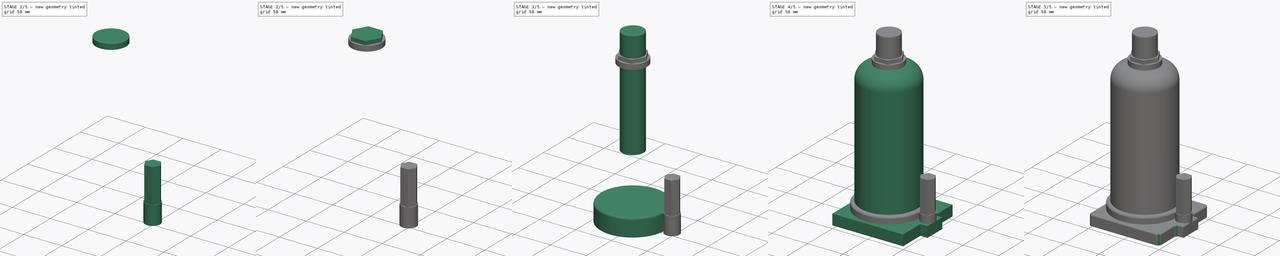
[diagram: build sequence overview — one tinted view per stage of 5, left to right]
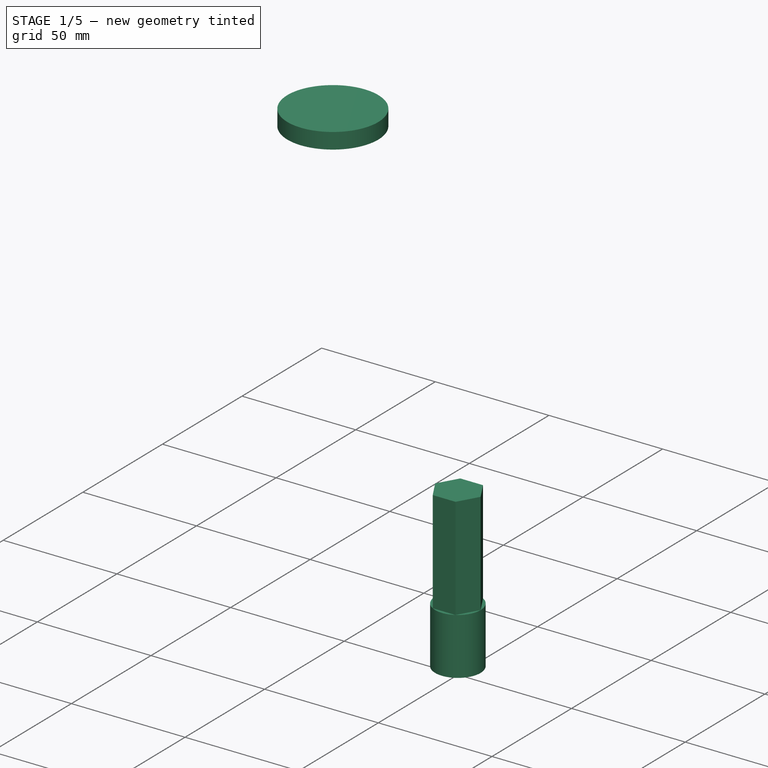
[diagram: stage 1 of 5 — iso view after this stage's code; geometry added in this stage tinted green]
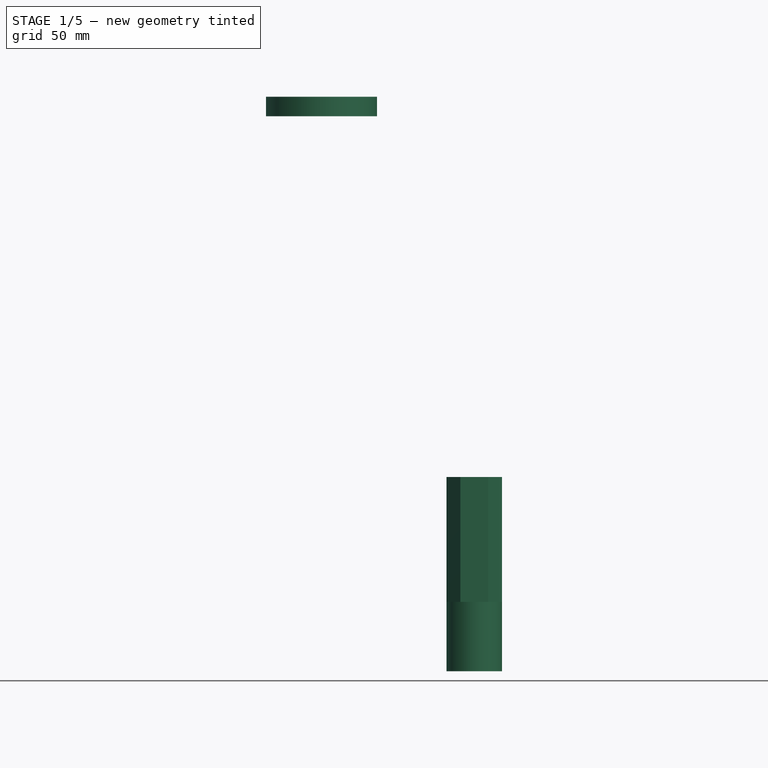
[diagram: stage 1 of 5 — front view after this stage's code; geometry added in this stage tinted green]
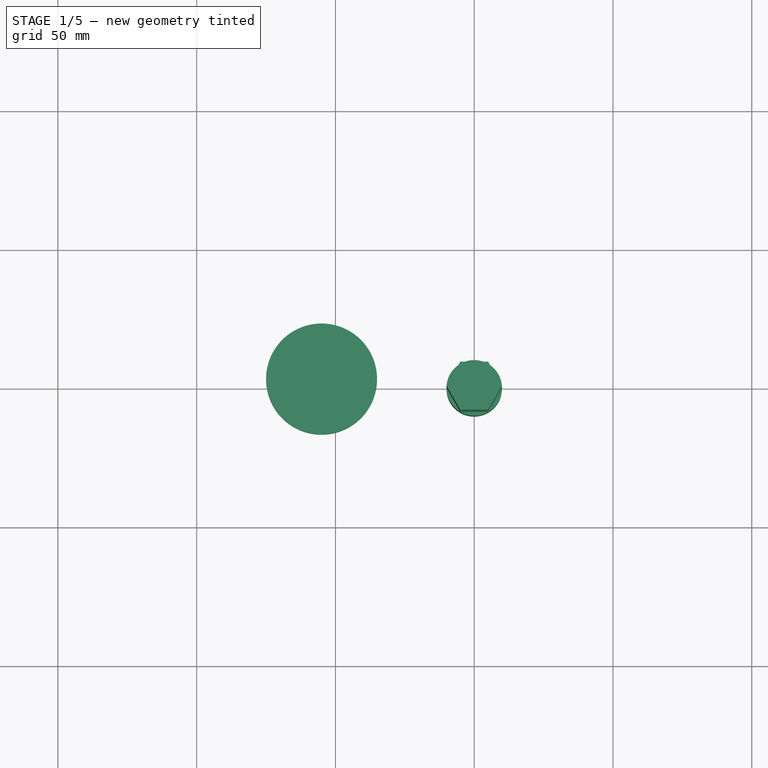
[diagram: stage 1 of 5 — top view after this stage's code; geometry added in this stage tinted green]
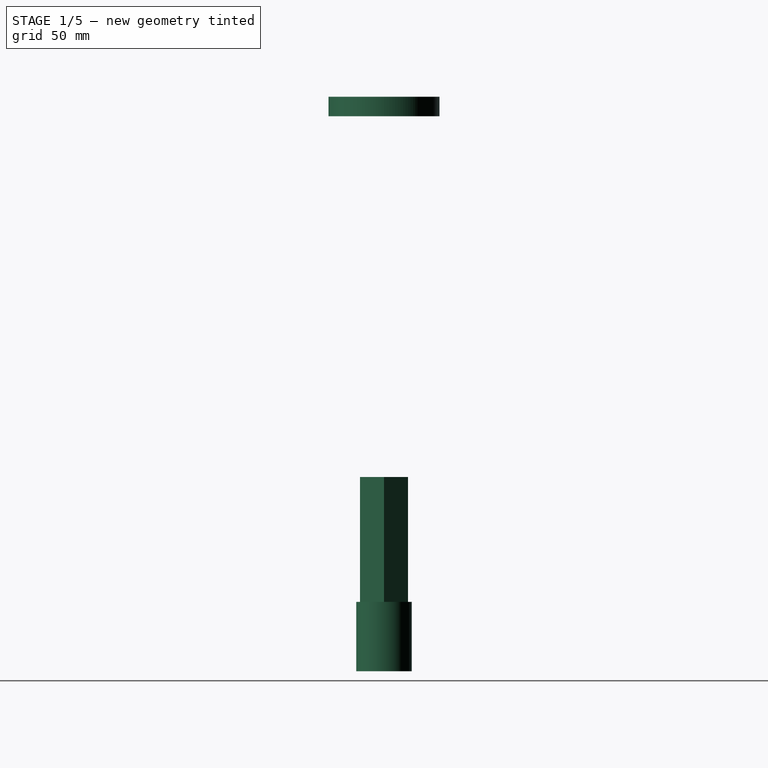
[diagram: stage 1 of 5 — right view after this stage's code; geometry added in this stage tinted green]
FCSTD DOCUMENT  (FreeCAD 0.18.4R)
Label: GatoFeo
License: All rights reserved
LicenseURL: http://en.wikipedia.org/wiki/All_rights_reserved
objects: Part::MultiFuse×6, Part::Fillet×4, Part::Cylinder×4, Sketcher::SketchObject×3, Part::Extrusion×2, Part::Prism×2
note: 21 computed .brp shape members not serialized (recipe doc carries the construction recipe); baked Part::Feature solids carry a one-line shape summary decoded from their .brp

FEATURE [Sketcher::SketchObject] Sketch001
  sketch-geometry (1):
    g0: Circle CenterX=50 CenterY=0 CenterZ=0 NormalX=0 NormalY=0 NormalZ=1 AngleXU=0 Radius=10
  constraints (3):
    c: PointOnObject(g0,g-1)
    c: Radius(g0) = 10
    c: DistanceX(g-1,g0) = 50
FEATURE [Part::Extrusion] Extrude001
  Base = -> Sketch001
  Dir = (0,0,1)
  DirMode = 2
  FaceMakerClass = Part::FaceMakerBullseye
  LengthFwd = 25
  LengthRev = 0
  Solid = true
  Symmetric = false
FEATURE [Part::Prism] Prism  label="Prisma"
  AttacherType = Attacher::AttachEngine3D
  Circumradius = 10
  Height = 70
  Placement = pos=(50,0,0) rot=(0,0,1;0rad)
  Polygon = 6
FEATURE [Part::Cylinder] Cylinder002  label="Cilindro002"
  Angle = 360
  AttacherType = Attacher::AttachEngine3D
  Height = 7
  Placement = pos=(-5,0,200) rot=(0,0,1;0rad)
  Radius = 20
FEATURE [Part::MultiFuse] Fusion001
  Shapes = -> [Extrude001,Prism]
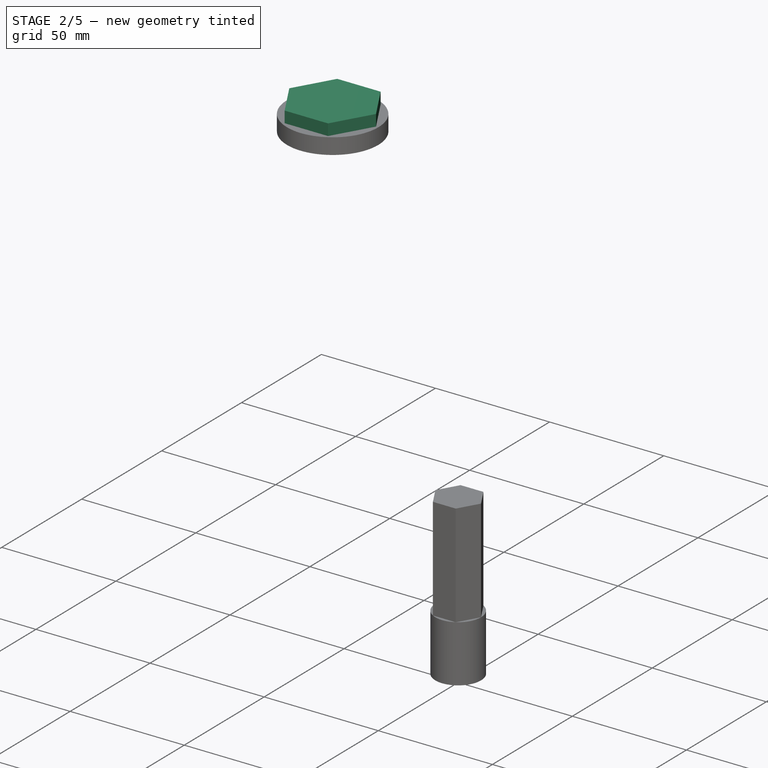
[diagram: stage 2 of 5 — iso view after this stage's code; geometry added in this stage tinted green]
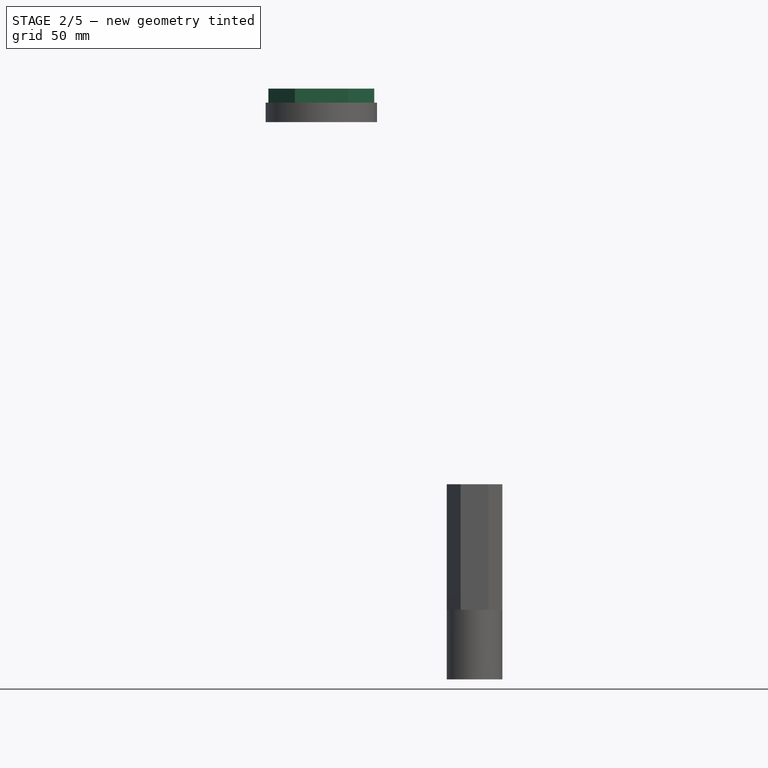
[diagram: stage 2 of 5 — front view after this stage's code; geometry added in this stage tinted green]
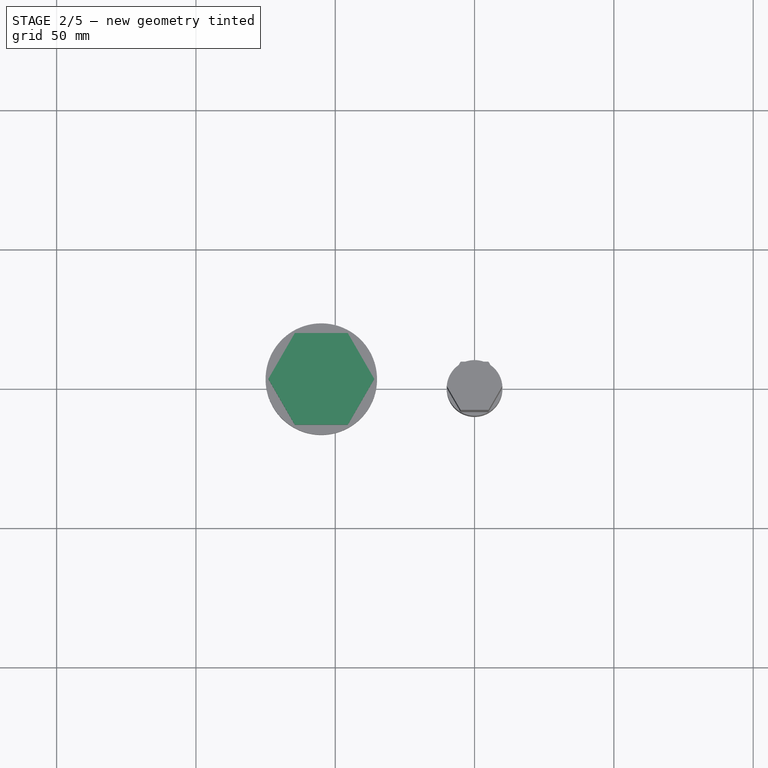
[diagram: stage 2 of 5 — top view after this stage's code; geometry added in this stage tinted green]
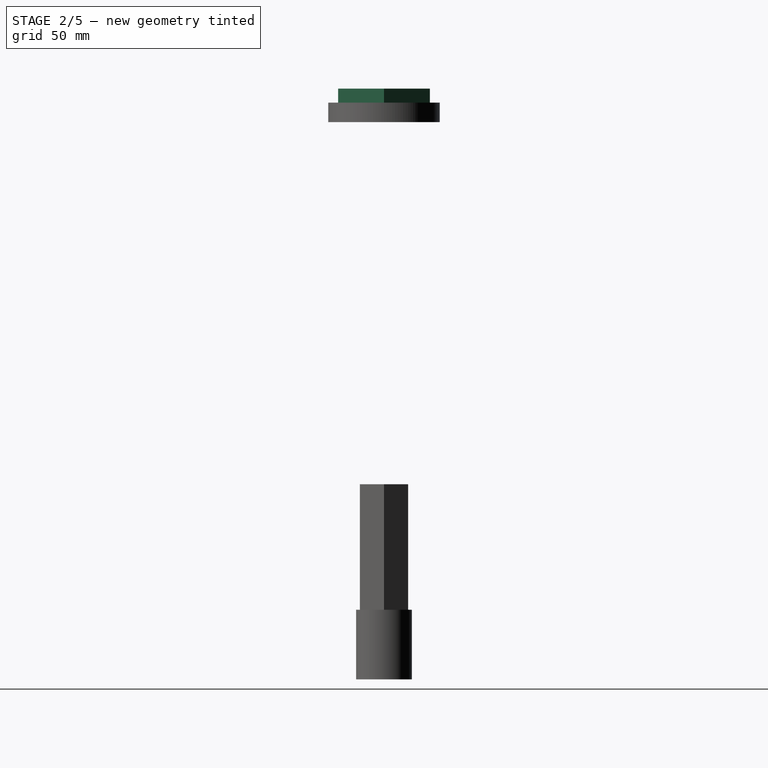
[diagram: stage 2 of 5 — right view after this stage's code; geometry added in this stage tinted green]
FEATURE [Part::Prism] Prism001  label="Prisma001"
  AttacherType = Attacher::AttachEngine3D
  Circumradius = 19
  Height = 12
  Placement = pos=(-5,0,200) rot=(0,0,1;0rad)
  Polygon = 6
FEATURE [Part::MultiFuse] Fusion
  Shapes = -> [Prism001,Cylinder002]
FEATURE [Part::MultiFuse] Fusion004
  Shapes = -> [Fusion,Fusion001]
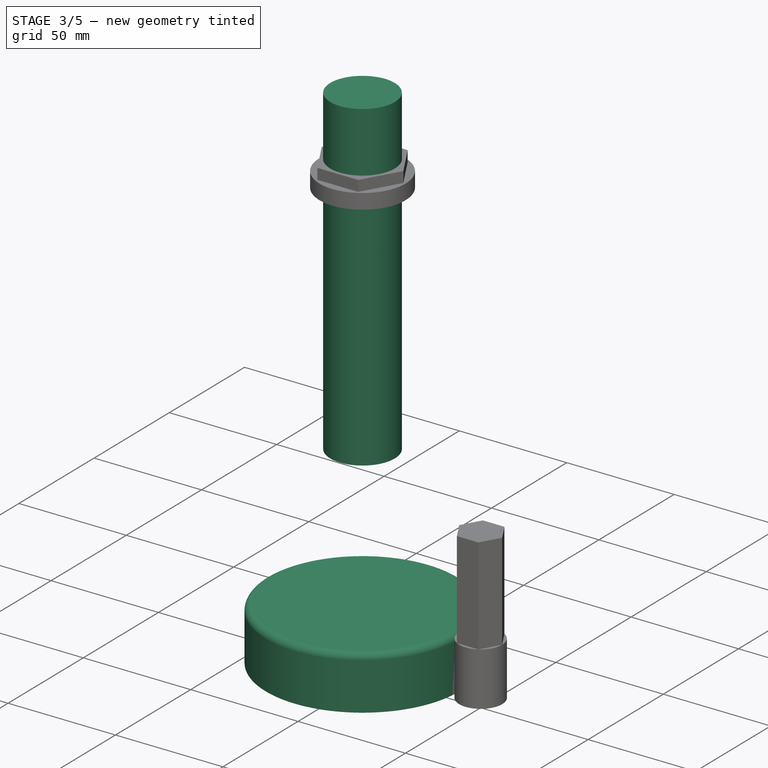
[diagram: stage 3 of 5 — iso view after this stage's code; geometry added in this stage tinted green]
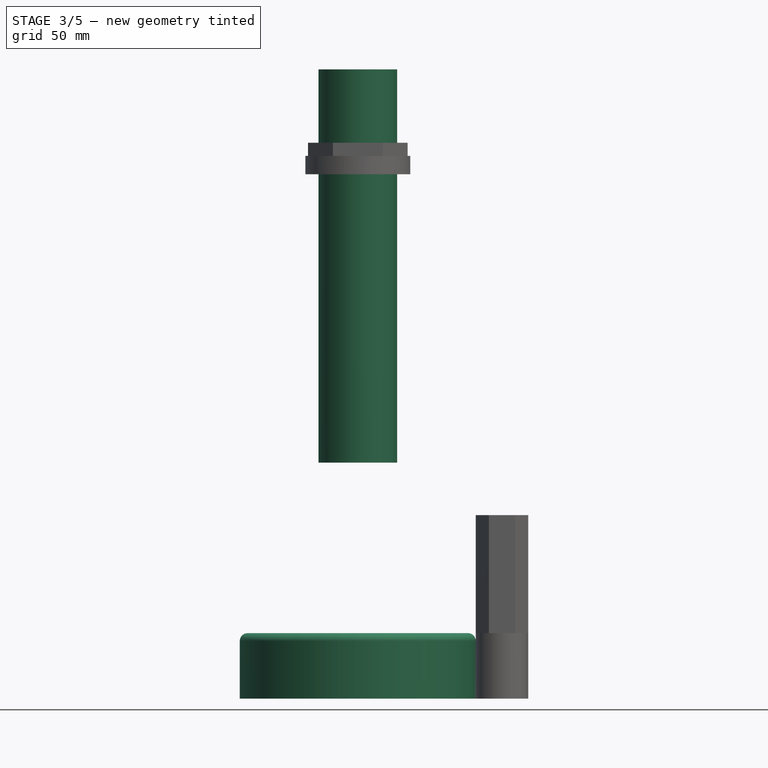
[diagram: stage 3 of 5 — front view after this stage's code; geometry added in this stage tinted green]
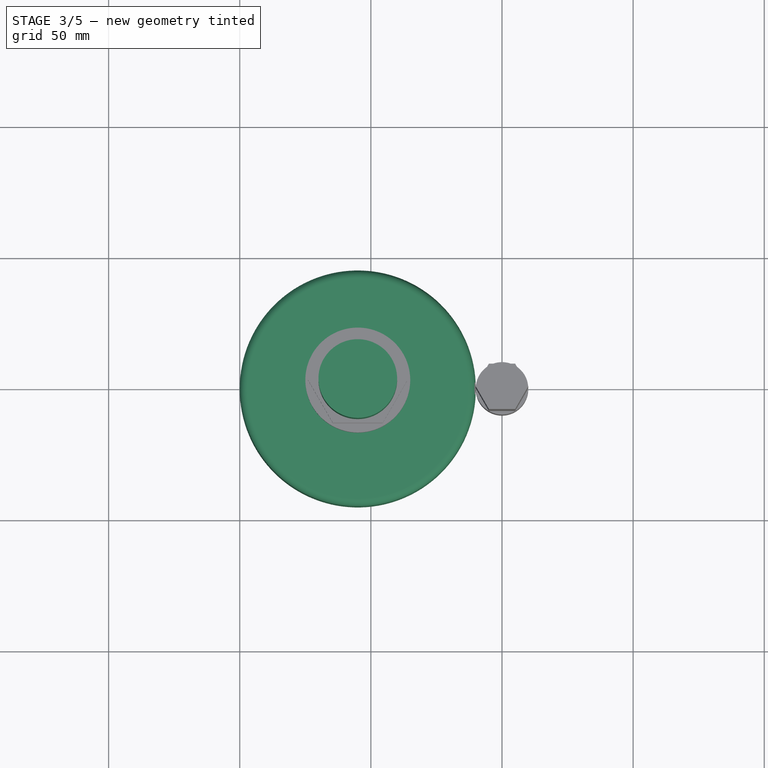
[diagram: stage 3 of 5 — top view after this stage's code; geometry added in this stage tinted green]
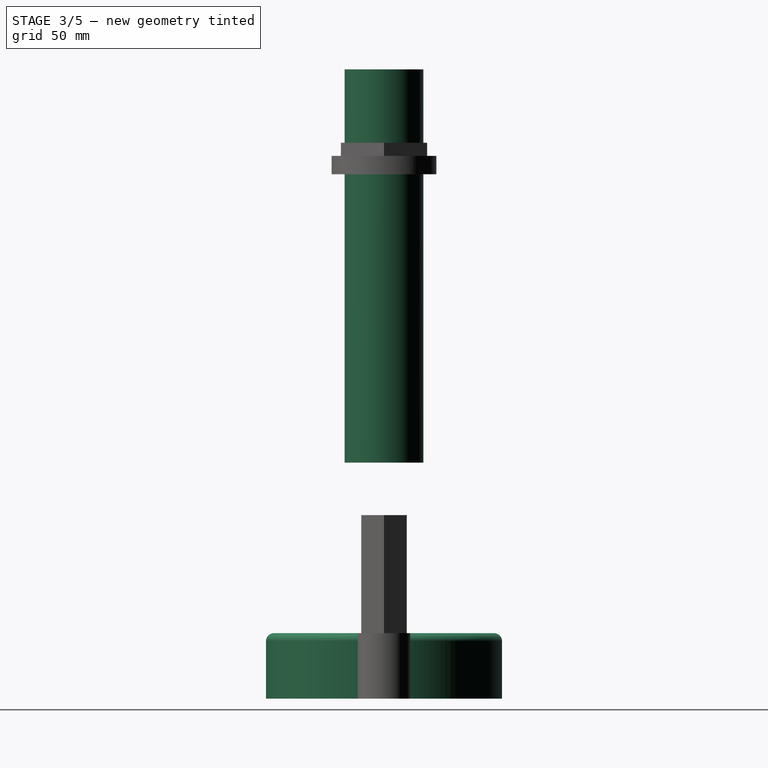
[diagram: stage 3 of 5 — right view after this stage's code; geometry added in this stage tinted green]
FEATURE [Part::Cylinder] Cylinder001  label="Cilindro001"
  Angle = 360
  AttacherType = Attacher::AttachEngine3D
  Height = 25
  Placement = pos=(-5,0,0) rot=(0,0,1;0rad)
  Radius = 45
FEATURE [Part::Fillet] Fillet003
  Base = -> Cylinder001
  Edges = 1 edges r=3: [Edge1]
FEATURE [Sketcher::SketchObject] Sketch002
  Placement = pos=(0,0,0) rot=(-1,0,0;4.71239rad)
FEATURE [Part::Cylinder] Cylinder003  label="Cilindro003"
  Angle = 360
  AttacherType = Attacher::AttachEngine3D
  Height = 150
  Placement = pos=(-5,0,90) rot=(0,0,1;0rad)
  Radius = 15
FEATURE [Part::MultiFuse] Fusion003
  Shapes = -> [Cylinder003,Fillet003]
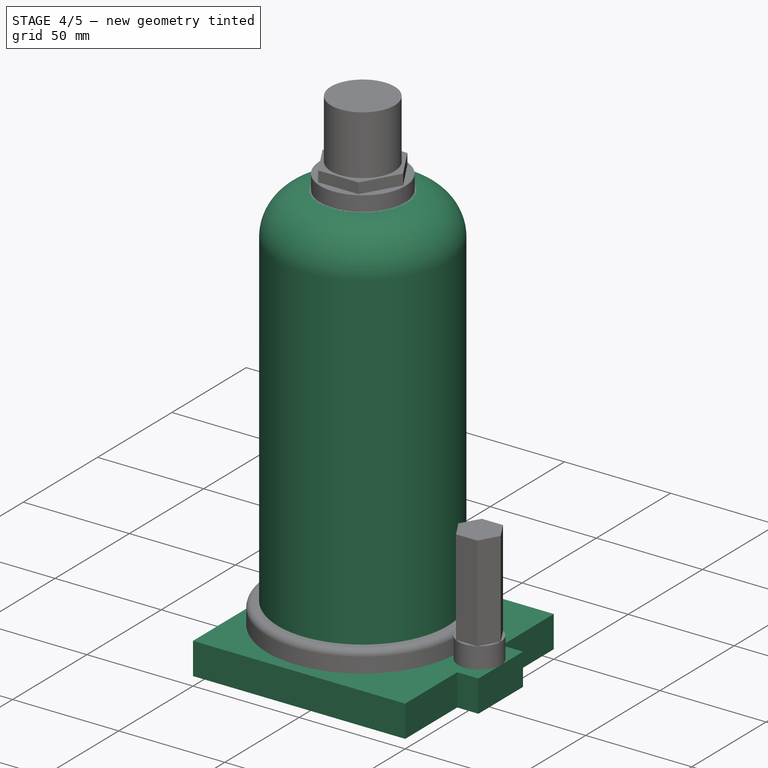
[diagram: stage 4 of 5 — iso view after this stage's code; geometry added in this stage tinted green]
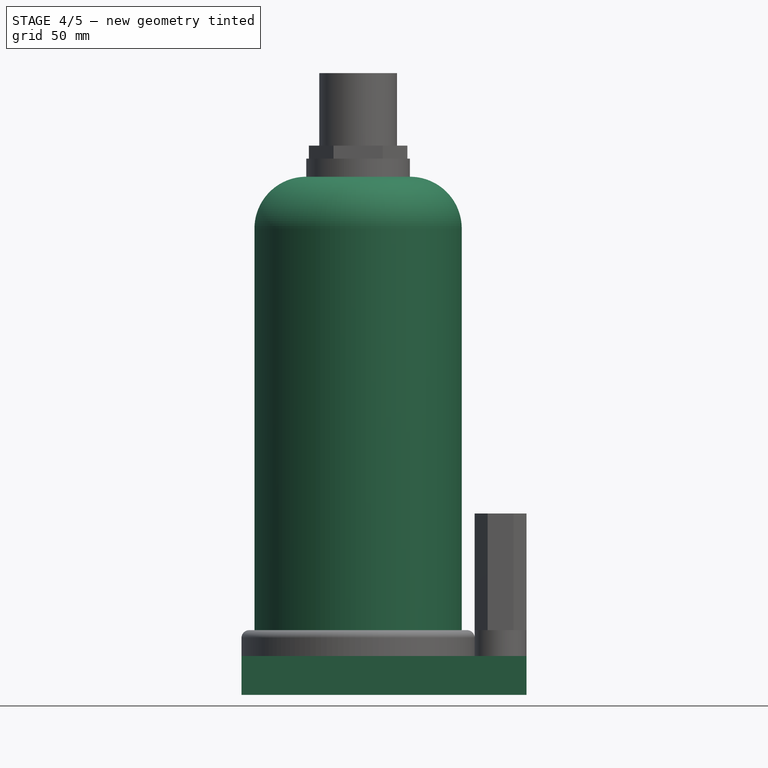
[diagram: stage 4 of 5 — front view after this stage's code; geometry added in this stage tinted green]
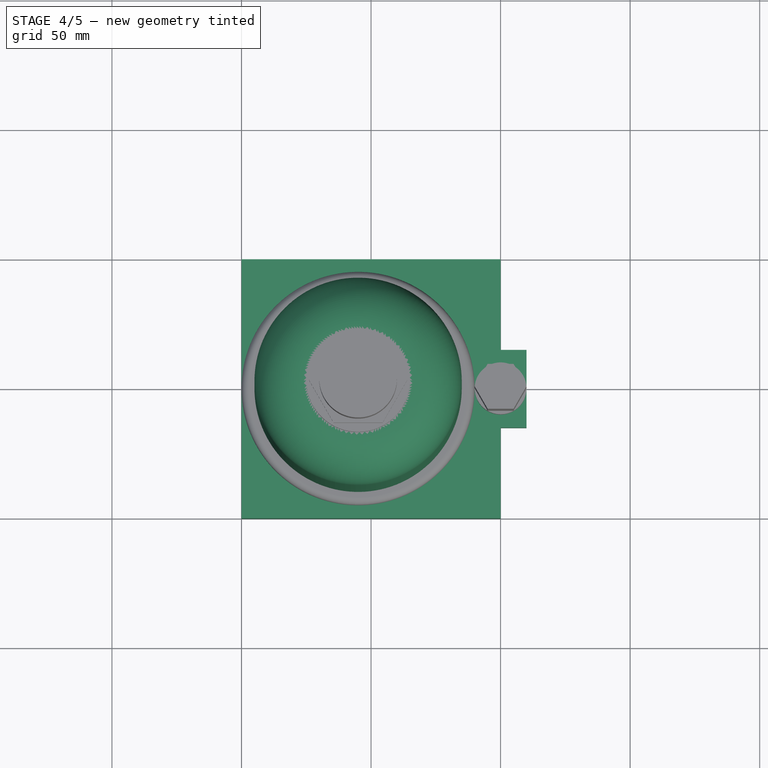
[diagram: stage 4 of 5 — top view after this stage's code; geometry added in this stage tinted green]
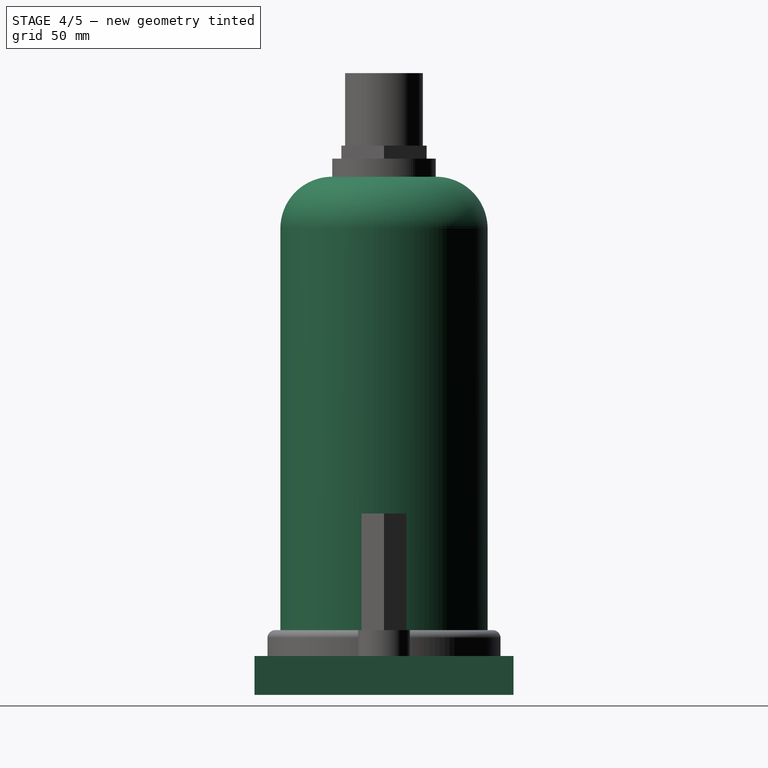
[diagram: stage 4 of 5 — right view after this stage's code; geometry added in this stage tinted green]
FEATURE [Sketcher::SketchObject] Sketch
  sketch-geometry (8):
    g0: LineSegment StartX=-50 StartY=50 StartZ=0 EndX=-50 EndY=-50 EndZ=0
    g1: LineSegment StartX=-50 StartY=-50 StartZ=0 EndX=50 EndY=-50 EndZ=0
    g2: LineSegment StartX=50 StartY=-50 StartZ=0 EndX=50 EndY=-15 EndZ=0
    g3: LineSegment StartX=50 StartY=-15 StartZ=0 EndX=60 EndY=-15 EndZ=0
    g4: LineSegment StartX=60 StartY=-15 StartZ=0 EndX=60 EndY=15 EndZ=0
    g5: LineSegment StartX=60 StartY=15 StartZ=0 EndX=50 EndY=15 EndZ=0
    g6: LineSegment StartX=50 StartY=15 StartZ=0 EndX=50 EndY=50 EndZ=0
    g7: LineSegment StartX=50 StartY=50 StartZ=0 EndX=-50 EndY=50 EndZ=0
  constraints (25):
    c: Vertical(g0)
    c: Coincident(g0,g1)
    c: Coincident(g1,g2)
    c: Vertical(g2)
    c: Coincident(g2,g3)
    c: Horizontal(g3)
    c: Coincident(g3,g4)
    c: Vertical(g4)
    c: Coincident(g4,g5)
    c: Horizontal(g5)
    c: Coincident(g5,g6)
    c: Vertical(g6)
    c: Coincident(g6,g7)
    c: Coincident(g7,g0)
    c: Horizontal(g7)
    c: Horizontal(g1)
    c: DistanceY(g0,g0) = 100
    c: Equal(g0,g7)
    c: Equal(g0,g7)
    c: Equal(g5,g3)
    c: Equal(g2,g6)
    c: DistanceX(g3,g3) = 10
    c: DistanceY(g-1,g0) = 50
    c: DistanceX(g0,g-1) = 50
    c: DistanceY(g3,g4) = 30
FEATURE [Part::Extrusion] Extrude
  Base = -> Sketch
  Dir = (0,0,1)
  DirMode = 2
  FaceMakerClass = Part::FaceMakerBullseye
  LengthFwd = 15
  LengthRev = 0
  Solid = true
  Symmetric = false
FEATURE [Part::Cylinder] Cylinder  label="Cilindro"
  Angle = 360
  AttacherType = Attacher::AttachEngine3D
  Height = 200
  Placement = pos=(-5,0,0) rot=(0,0,1;0rad)
  Radius = 40
FEATURE [Part::Fillet] Fillet002
  Base = -> Cylinder
  Edges = 1 edges r=20: [Edge1]
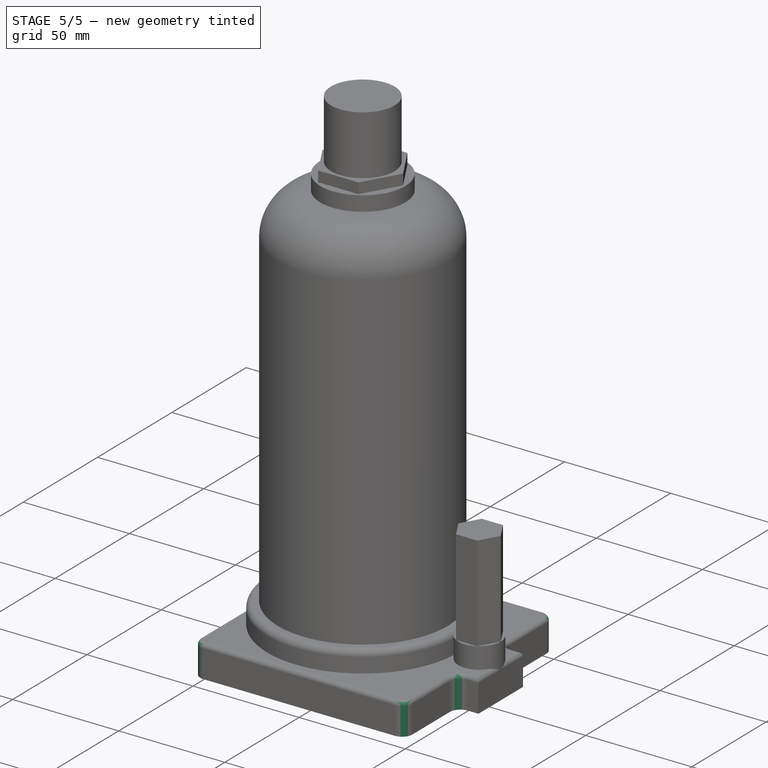
[diagram: stage 5 of 5 — iso view after this stage's code; geometry added in this stage tinted green]
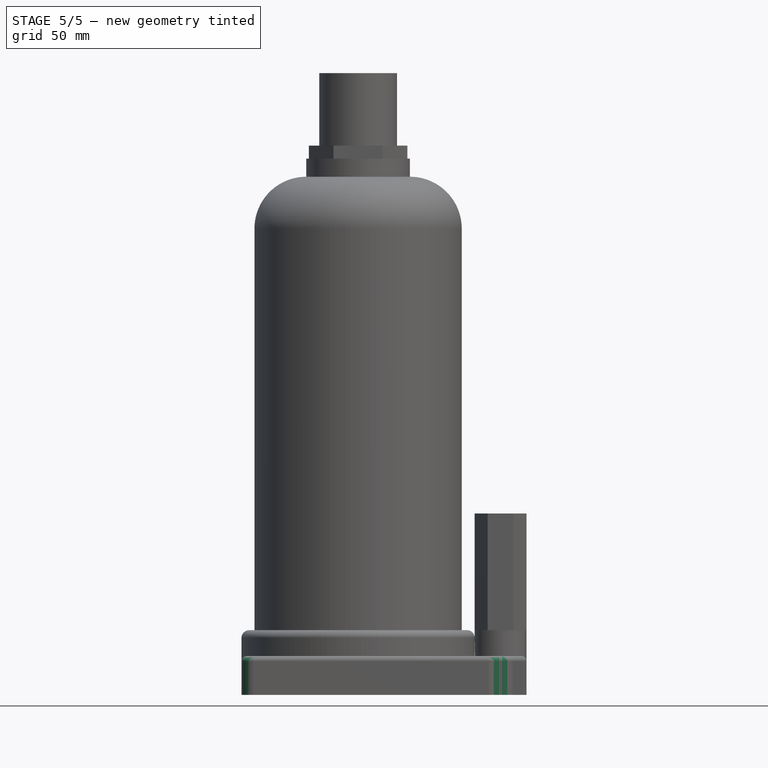
[diagram: stage 5 of 5 — front view after this stage's code; geometry added in this stage tinted green]
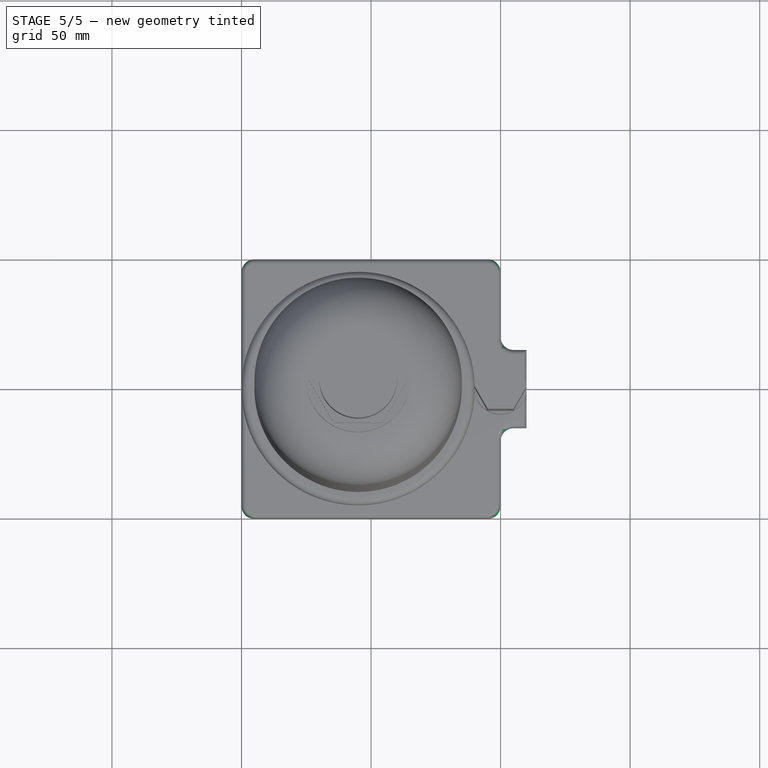
[diagram: stage 5 of 5 — top view after this stage's code; geometry added in this stage tinted green]
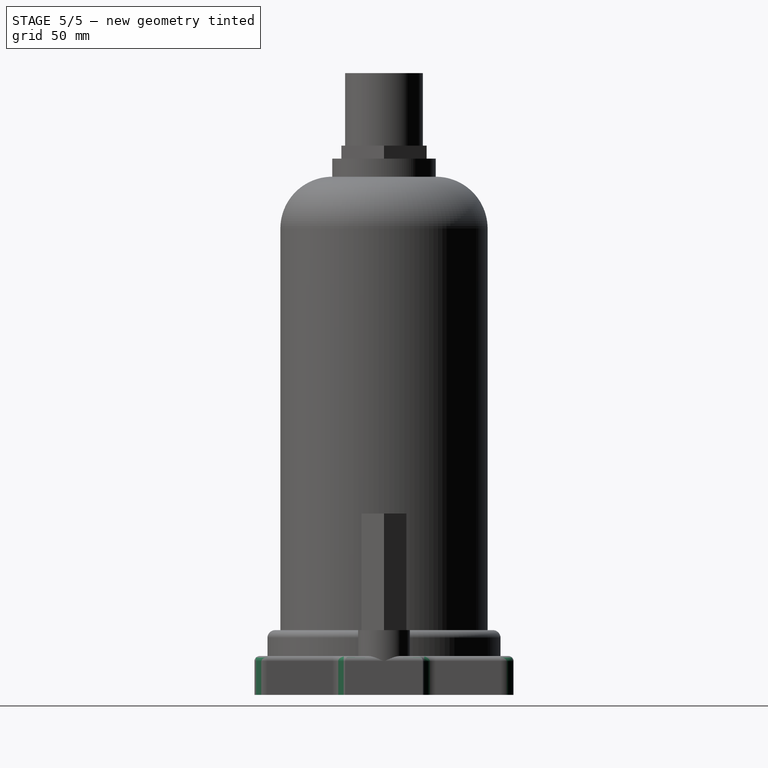
[diagram: stage 5 of 5 — right view after this stage's code; geometry added in this stage tinted green]
FEATURE [Part::Fillet] Fillet
  Base = -> Extrude
  Edges = 6 edges r=5: [Edge1,Edge2,Edge5,Edge8,Edge17,Edge20]
FEATURE [Part::Fillet] Fillet001
  Base = -> Fillet
  Edges = 14 edges r=2: [Edge4,Edge19,Edge21,Edge22,Edge23,Edge24,Edge25,Edge26,Edge27,Edge28,Edge29,Edge30,Edge31,Edge32]
FEATURE [Part::MultiFuse] Fusion002
  Shapes = -> [Fillet002,Fillet001]
FEATURE [Part::MultiFuse] Fusion005  label="fusionadoTo2"
  Shapes = -> [Fusion002,Fusion004,Fusion003]
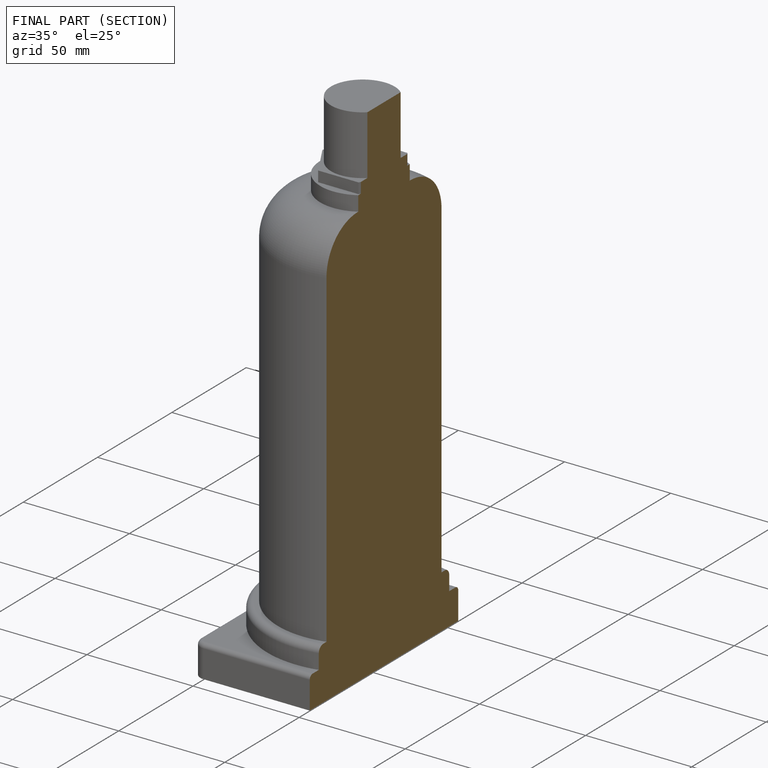
[diagram: finished part — half-section view (interior)]
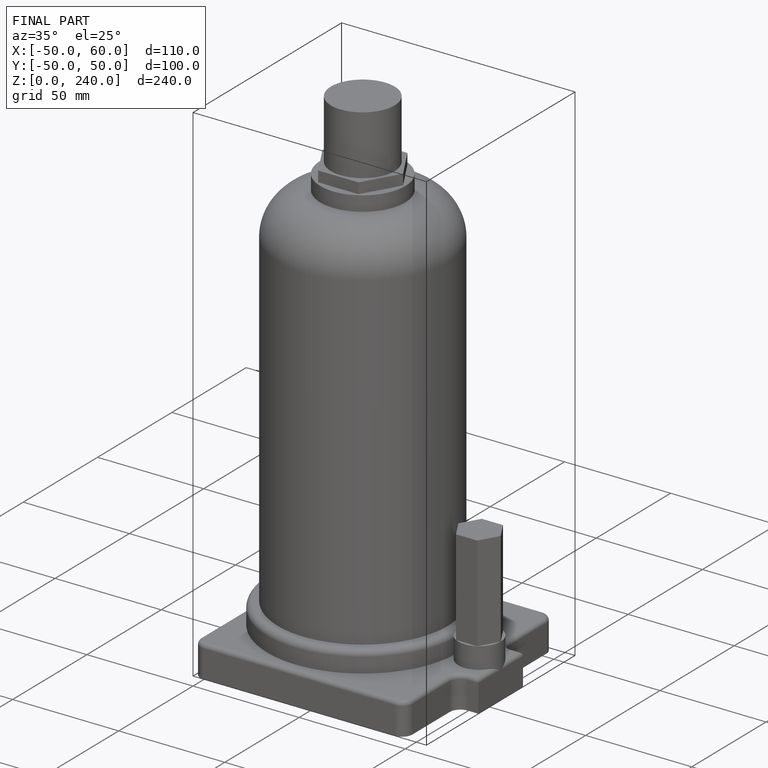
[diagram: finished part — iso view with bounding-box wireframe]
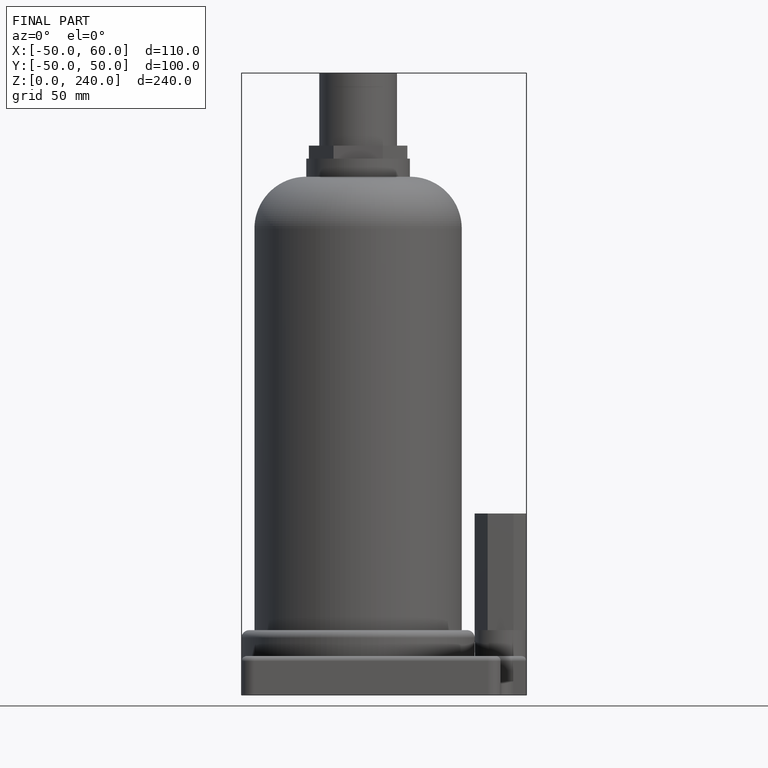
[diagram: finished part — front view with bounding-box wireframe]
